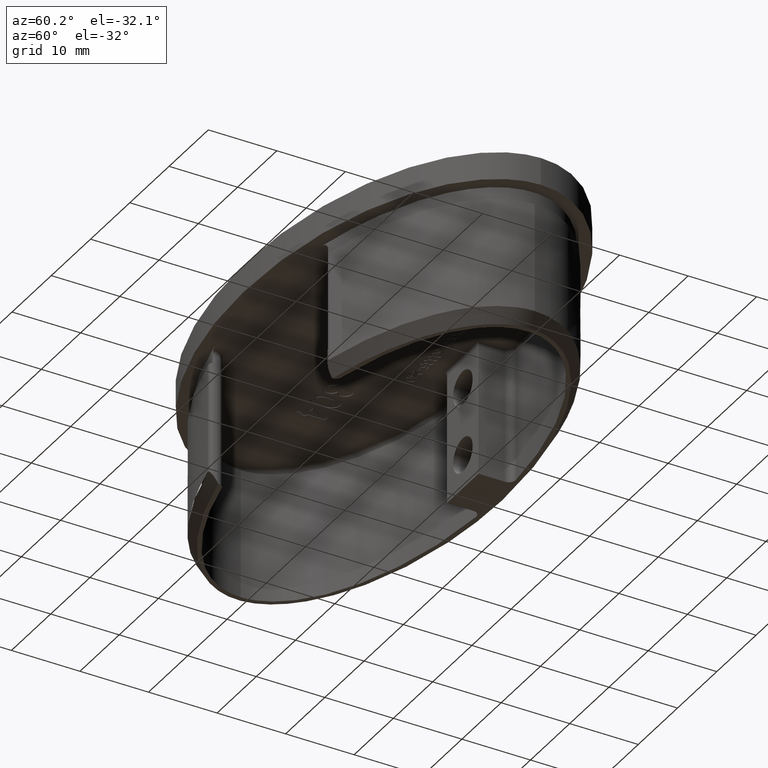
[diagram: clean part render]
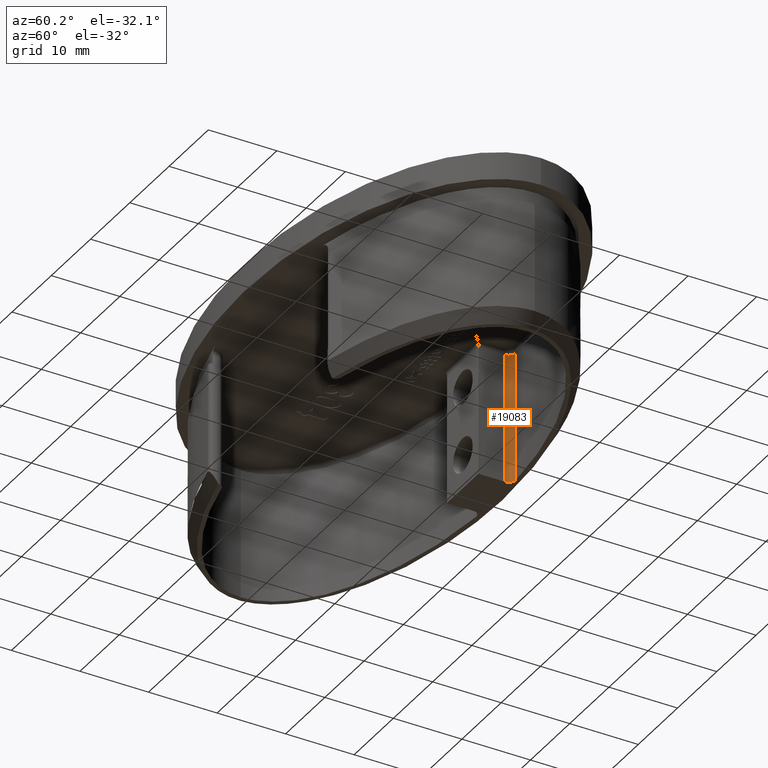
[diagram: same view with one face highlighted and labeled with its STEP entity id]
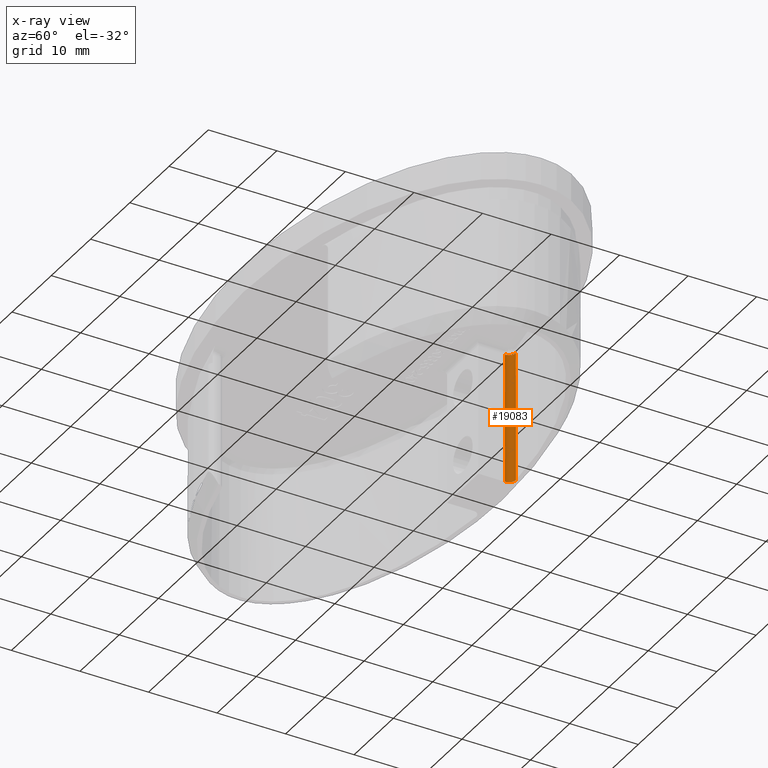
[diagram: x-ray of the same camera — body ghosted, the highlighted face saturated]
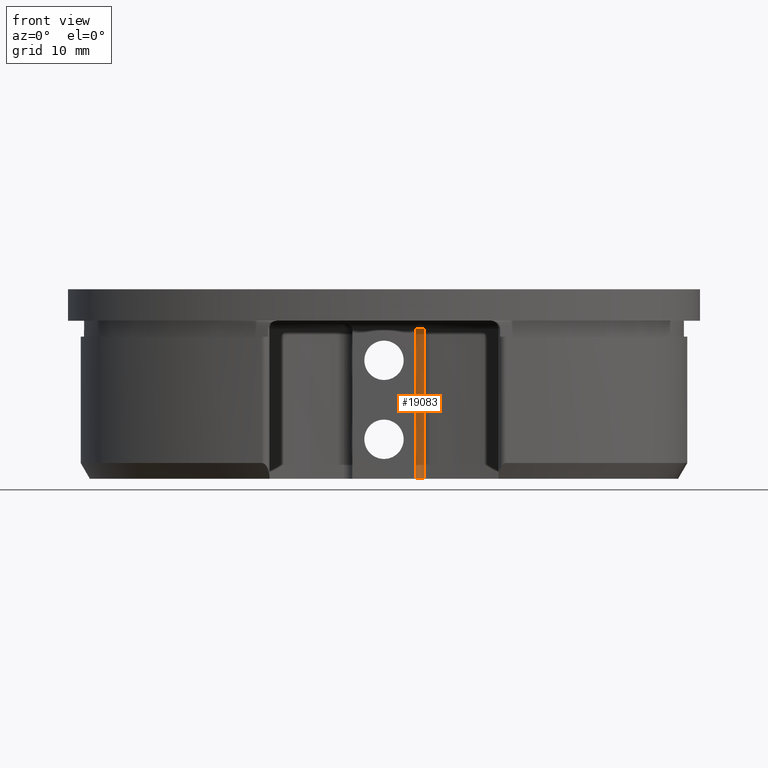
[diagram: same view with one face highlighted and labeled with its STEP entity id]
A machine part, auxiliary view. The second image highlights one B-rep face of the part: STEP entity #19083.
The next image is the same camera in x-ray: the body ghosted, the highlighted face saturated — about 0% of this face is hidden behind the body in this view.
A second angle (front view) of the same face is appended — the face is thin or edge-on in the first view.
In plain terms, the highlighted cylindrical surface (edge-blend (fillet) strip) has radius 1 mm, axis along (-0, -0, 1).
Its self-contained STEP definition (entity closure, byte-faithful):
#762 = VERTEX_POINT ( 'NONE', #5364 ) ;
#1949 = DIRECTION ( 'NONE',  ( 1.000000000000000000, 0.000000000000000000, 0.000000000000000000 ) ) ;
#2391 = CIRCLE ( 'NONE', #11518, 1.000000000000000000 ) ;
#3007 = CYLINDRICAL_SURFACE ( 'NONE', #9787, 1.000000000000000000 ) ;
#3278 = ORIENTED_EDGE ( 'NONE', *, *, #9598, .F. ) ;
#3504 = CARTESIAN_POINT ( 'NONE',  ( 5.063193593044852392, 16.34047756812772079, -20.00000000000000000 ) ) ;
#3591 = CARTESIAN_POINT ( 'NONE',  ( 4.999999999999992895, 15.34247628065456226, -10.00000000000000000 ) ) ;
#4766 = DIRECTION ( 'NONE',  ( 0.000000000000000000, 1.000000000000000000, -8.673617379884027583E-16 ) ) ;
#4773 = CARTESIAN_POINT ( 'NONE',  ( 4.000000000000000000, 15.34247628065456226, 4.001999999999998892 ) ) ;
#4993 = EDGE_CURVE ( 'NONE', #5733, #762, #16588, .T. ) ;
#5364 = CARTESIAN_POINT ( 'NONE',  ( 5.063193593044852392, 16.34047756812772079, -1.000000000000001332 ) ) ;
#5446 = CARTESIAN_POINT ( 'NONE',  ( 4.000000000000000000, 15.34247628065456226, -20.00000000000000000 ) ) ;
#5587 = FACE_OUTER_BOUND ( 'NONE', #6849, .T. ) ;
#5733 = VERTEX_POINT ( 'NONE', #9494 ) ;
#6250 = AXIS2_PLACEMENT_3D ( 'NONE', #9334, #15328, #4766 ) ;
#6295 = DIRECTION ( 'NONE',  ( -0.000000000000000000, -0.000000000000000000, 1.000000000000000000 ) ) ;
#6562 = VECTOR ( 'NONE', #18208, 1000.000000000000000 ) ;
#6849 = EDGE_LOOP ( 'NONE', ( #14142, #3278, #18691, #12618 ) ) ;
#7133 = VECTOR ( 'NONE', #16387, 1000.000000000000000 ) ;
#7901 = CARTESIAN_POINT ( 'NONE',  ( 4.999999999999992895, 15.34247628065456226, -20.00000000000000000 ) ) ;
#8146 = VERTEX_POINT ( 'NONE', #3504 ) ;
#9334 = CARTESIAN_POINT ( 'NONE',  ( 5.000000000000000000, 15.34247628065456226, -1.000000000000000000 ) ) ;
#9479 = DIRECTION ( 'NONE',  ( -1.000000000000000000, 1.734723475976807094E-15, 0.000000000000000000 ) ) ;
#9494 = CARTESIAN_POINT ( 'NONE',  ( 4.000000000000000000, 15.34247628065456226, -1.000000000000000000 ) ) ;
#9598 = EDGE_CURVE ( 'NONE', #762, #8146, #13478, .T. ) ;
#9766 = VERTEX_POINT ( 'NONE', #5446 ) ;
#9787 = AXIS2_PLACEMENT_3D ( 'NONE', #3591, #15337, #1949 ) ;
#10531 = LINE ( 'NONE', #4773, #6562 ) ;
#11518 = AXIS2_PLACEMENT_3D ( 'NONE', #7901, #6295, #9479 ) ;
#11811 = CARTESIAN_POINT ( 'NONE',  ( 5.063193593044852392, 16.34047756812772079, -1.000000000000000888 ) ) ;
#12618 = ORIENTED_EDGE ( 'NONE', *, *, #17369, .F. ) ;
#13478 = LINE ( 'NONE', #11811, #7133 ) ;
#14142 = ORIENTED_EDGE ( 'NONE', *, *, #14710, .F. ) ;
#14710 = EDGE_CURVE ( 'NONE', #8146, #9766, #2391, .T. ) ;
#15328 = DIRECTION ( 'NONE',  ( -0.000000000000000000, -8.690988166803660032E-16, -1.000000000000000000 ) ) ;
#15337 = DIRECTION ( 'NONE',  ( -0.000000000000000000, -0.000000000000000000, 1.000000000000000000 ) ) ;
#16387 = DIRECTION ( 'NONE',  ( 0.000000000000000000, 0.000000000000000000, -1.000000000000000000 ) ) ;
#16588 = CIRCLE ( 'NONE', #6250, 1.000000000000000888 ) ;
#17369 = EDGE_CURVE ( 'NONE', #9766, #5733, #10531, .T. ) ;
#18208 = DIRECTION ( 'NONE',  ( 0.000000000000000000, -0.000000000000000000, 1.000000000000000000 ) ) ;
#18691 = ORIENTED_EDGE ( 'NONE', *, *, #4993, .F. ) ;
#19083 = ADVANCED_FACE ( 'NONE', ( #5587 ), #3007, .F. ) ;